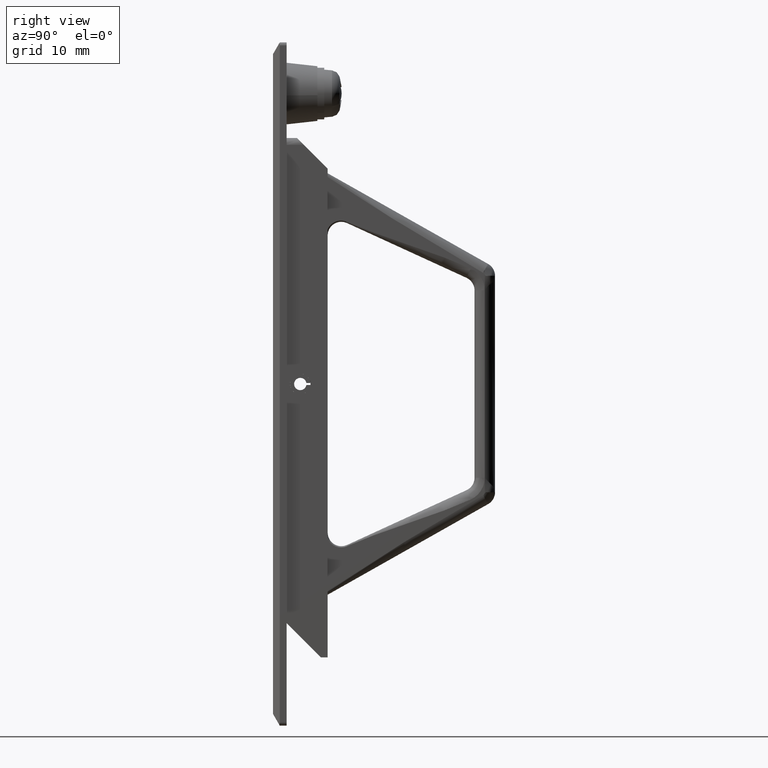
[diagram: clean part render]
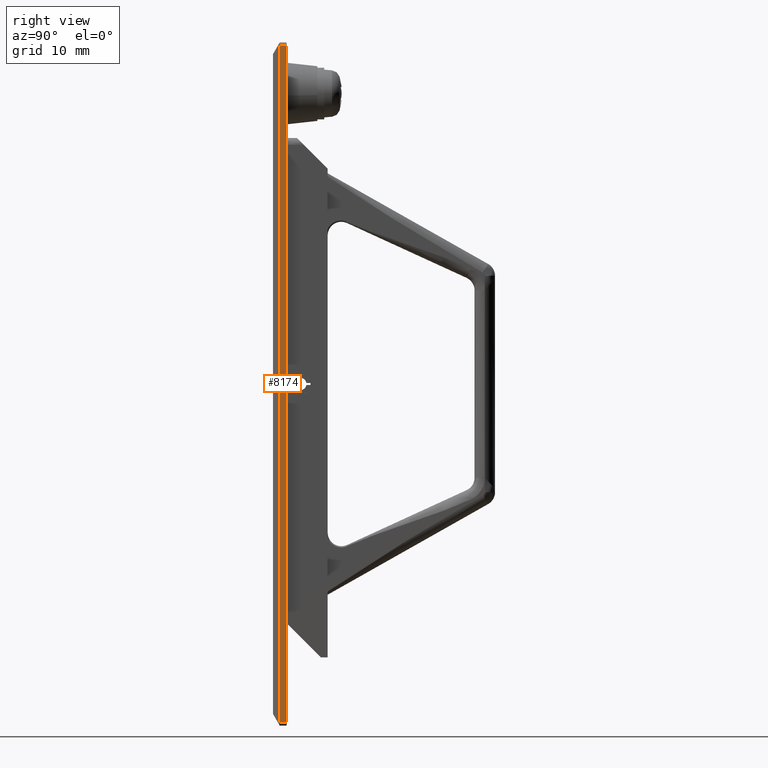
[diagram: same view with one face highlighted and labeled with its STEP entity id]
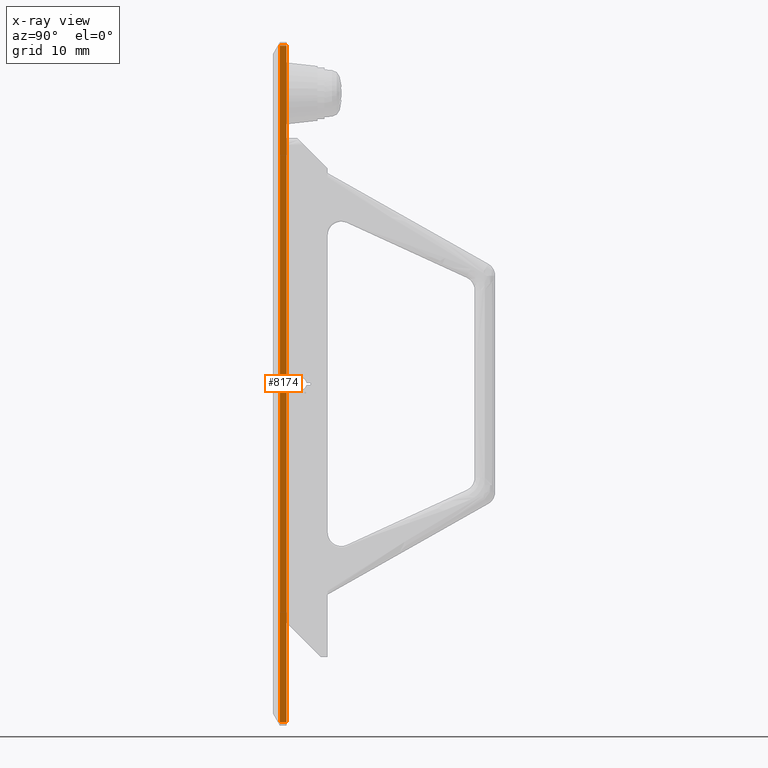
[diagram: x-ray of the same camera — body ghosted, the highlighted face saturated]
A machine part, right view. The second image highlights one B-rep face of the part: STEP entity #8174.
The next image is the same camera in x-ray: the body ghosted, the highlighted face saturated — about 0% of this face is hidden behind the body in this view.
In plain terms, the highlighted face is a freeform B-spline surface patch.
Its self-contained STEP definition (entity closure, byte-faithful):
#7857=CARTESIAN_POINT('',(1.0,-10.0,49.500000000000000));
#7858=VERTEX_POINT('',#7857);
#7874=CARTESIAN_POINT('',(2.0,-10.0,49.500000000000000));
#7875=VERTEX_POINT('',#7874);
#7876=CARTESIAN_POINT('',(2.0,-10.0,49.500000000000000));
#7877=CARTESIAN_POINT('',(1.0,-10.0,49.500000000000000));
#7878=QUASI_UNIFORM_CURVE('',1,(#7876,#7877),.UNSPECIFIED.,.F.,.U.);
#7879=EDGE_CURVE('',#7875,#7858,#7878,.T.);
#8009=CARTESIAN_POINT('',(2.0,-10.0,-49.500000000000000));
#8010=VERTEX_POINT('',#8009);
#8026=CARTESIAN_POINT('',(1.0,-10.0,-49.500000000000000));
#8027=VERTEX_POINT('',#8026);
#8028=CARTESIAN_POINT('',(1.0,-10.0,-49.500000000000000));
#8029=CARTESIAN_POINT('',(2.0,-10.0,-49.500000000000000));
#8030=QUASI_UNIFORM_CURVE('',1,(#8028,#8029),.UNSPECIFIED.,.F.,.U.);
#8031=EDGE_CURVE('',#8027,#8010,#8030,.T.);
#8118=CARTESIAN_POINT('',(1.0,-10.0,-49.500000000000000));
#8119=CARTESIAN_POINT('',(1.0,-10.0,49.500000000000000));
#8120=QUASI_UNIFORM_CURVE('',1,(#8118,#8119),.UNSPECIFIED.,.F.,.U.);
#8121=EDGE_CURVE('',#8027,#7858,#8120,.T.);
#8159=CARTESIAN_POINT('',(0.950050001938194,-10.0,54.445049808118789));
#8160=CARTESIAN_POINT('',(2.049950024883896,-10.0,54.445049808118789));
#8161=CARTESIAN_POINT('',(0.950050001938194,-10.0,-54.445052463505718));
#8162=CARTESIAN_POINT('',(2.049950024883896,-10.0,-54.445052463505718));
#8163=B_SPLINE_SURFACE_WITH_KNOTS('',1,1,((#8159,#8161),(#8160,#8162)),.UNSPECIFIED.,.F.,.F.,.U.,(2,2),(2,2),(0.041708334948495,0.958291687403247),(0.0,108.890102271624500),.UNSPECIFIED.);
#8164=ORIENTED_EDGE('',*,*,#8121,.F.);
#8165=ORIENTED_EDGE('',*,*,#8031,.T.);
#8166=CARTESIAN_POINT('',(2.0,-10.0,49.500000000000000));
#8167=CARTESIAN_POINT('',(2.0,-10.0,-49.500000000000000));
#8168=QUASI_UNIFORM_CURVE('',1,(#8166,#8167),.UNSPECIFIED.,.F.,.U.);
#8169=EDGE_CURVE('',#7875,#8010,#8168,.T.);
#8170=ORIENTED_EDGE('',*,*,#8169,.F.);
#8171=ORIENTED_EDGE('',*,*,#7879,.T.);
#8172=EDGE_LOOP('',(#8164,#8165,#8170,#8171));
#8173=FACE_OUTER_BOUND('',#8172,.T.);
#8174=ADVANCED_FACE('',(#8173),#8163,.F.);